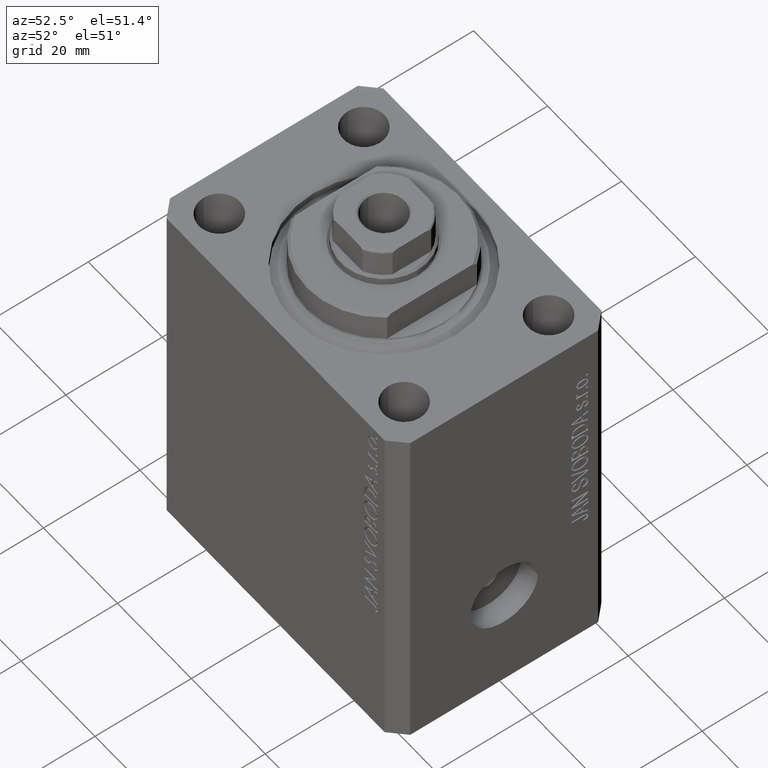
[diagram: clean part render]
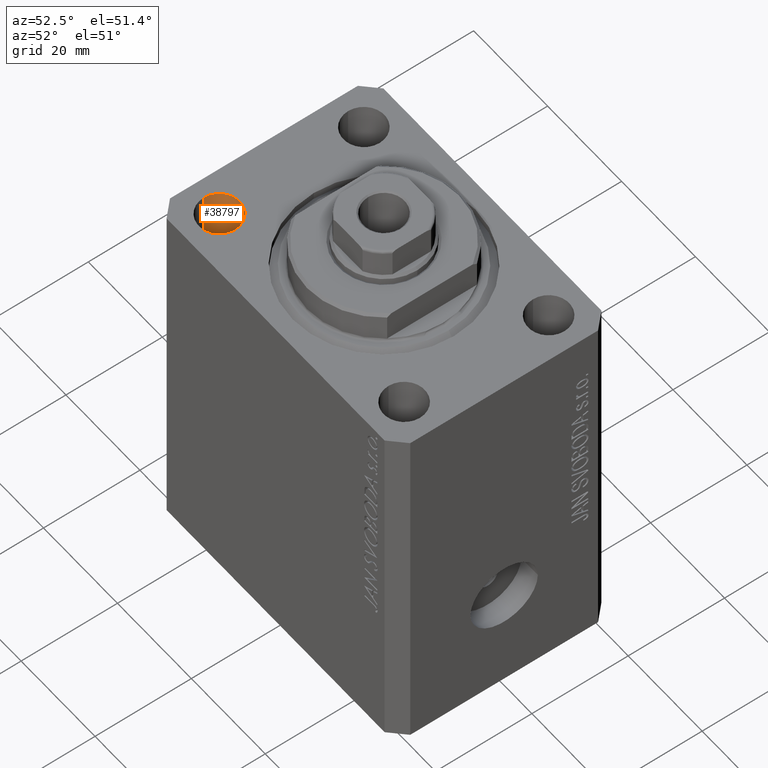
[diagram: same view with one face highlighted and labeled with its STEP entity id]
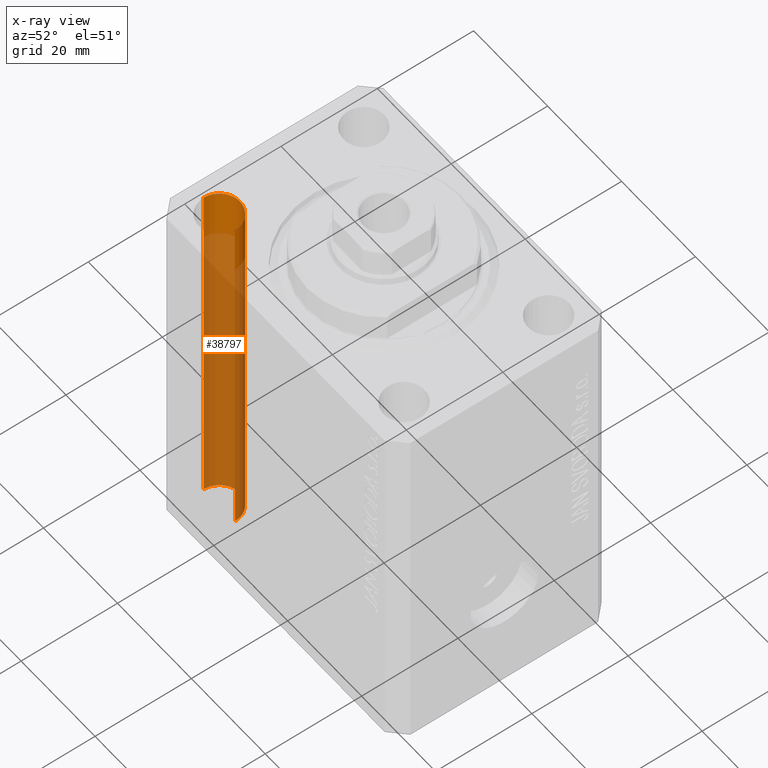
[diagram: x-ray of the same camera — body ghosted, the highlighted face saturated]
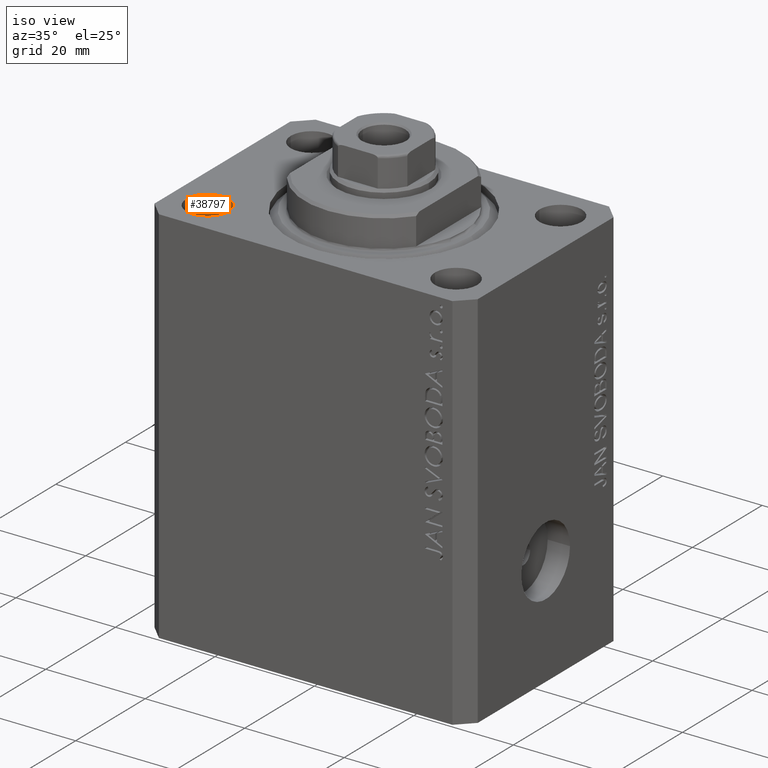
[diagram: same view with one face highlighted and labeled with its STEP entity id]
A machine part, auxiliary view. The second image highlights one B-rep face of the part: STEP entity #38797.
The next image is the same camera in x-ray: the body ghosted, the highlighted face saturated — about 85% of this face is hidden behind the body in this view.
A second angle (iso view) of the same face is appended — the face is thin or edge-on in the first view.
In plain terms, the highlighted cylindrical surface (edge-blend (fillet) strip) has radius 4.25 mm, axis along (0, 0, 1).
Its self-contained STEP definition (entity closure, byte-faithful):
#1017 = DIRECTION ( 'NONE',  ( 1.000000000000000000, 0.000000000000000000, 0.000000000000000000 ) ) ;
#1079 = CARTESIAN_POINT ( 'NONE',  ( -20.74999999995962341, -15.00000000000000355, 0.000000000000000000 ) ) ;
#1107 = EDGE_CURVE ( 'NONE', #18141, #38706, #5605, .T. ) ;
#1742 = DIRECTION ( 'NONE',  ( -0.000000000000000000, -0.000000000000000000, -1.000000000000000000 ) ) ;
#2126 = CARTESIAN_POINT ( 'NONE',  ( -20.74999999995962341, -15.00000000000000355, -77.00000000000000000 ) ) ;
#3616 = EDGE_LOOP ( 'NONE', ( #4606, #17479, #17278, #15531 ) ) ;
#4606 = ORIENTED_EDGE ( 'NONE', *, *, #6824, .F. ) ;
#5605 = LINE ( 'NONE', #29345, #39048 ) ;
#5764 = LINE ( 'NONE', #25666, #11747 ) ;
#5809 = EDGE_CURVE ( 'NONE', #22949, #18141, #9549, .T. ) ;
#6824 = EDGE_CURVE ( 'NONE', #22949, #24471, #5764, .T. ) ;
#7804 = DIRECTION ( 'NONE',  ( 0.000000000000000000, 0.000000000000000000, 1.000000000000000000 ) ) ;
#9212 = DIRECTION ( 'NONE',  ( -0.000000000000000000, -0.000000000000000000, 1.000000000000000000 ) ) ;
#9549 = CIRCLE ( 'NONE', #13172, 4.250000000040370374 ) ;
#11445 = EDGE_CURVE ( 'NONE', #38706, #24471, #37723, .T. ) ;
#11747 = VECTOR ( 'NONE', #39450, 1000.000000000000000 ) ;
#13172 = AXIS2_PLACEMENT_3D ( 'NONE', #32699, #1742, #15542 ) ;
#13486 = AXIS2_PLACEMENT_3D ( 'NONE', #18721, #29779, #15552 ) ;
#15531 = ORIENTED_EDGE ( 'NONE', *, *, #11445, .T. ) ;
#15542 = DIRECTION ( 'NONE',  ( 1.000000000000000000, 0.000000000000000000, 0.000000000000000000 ) ) ;
#15552 = DIRECTION ( 'NONE',  ( 1.000000000000000000, 0.000000000000000000, 0.000000000000000000 ) ) ;
#17278 = ORIENTED_EDGE ( 'NONE', *, *, #1107, .T. ) ;
#17479 = ORIENTED_EDGE ( 'NONE', *, *, #5809, .T. ) ;
#18141 = VERTEX_POINT ( 'NONE', #2126 ) ;
#18721 = CARTESIAN_POINT ( 'NONE',  ( -24.99999999999999289, -15.00000000000000355, -89.02081528028548973 ) ) ;
#22949 = VERTEX_POINT ( 'NONE', #24797 ) ;
#24471 = VERTEX_POINT ( 'NONE', #25229 ) ;
#24797 = CARTESIAN_POINT ( 'NONE',  ( -29.25000000004036593, -15.00000000000000355, -77.00000000000000000 ) ) ;
#25229 = CARTESIAN_POINT ( 'NONE',  ( -29.25000000004036593, -15.00000000000000355, 0.000000000000000000 ) ) ;
#25666 = CARTESIAN_POINT ( 'NONE',  ( -29.25000000004036593, -15.00000000000000355, -89.02081528028548973 ) ) ;
#25944 = CYLINDRICAL_SURFACE ( 'NONE', #13486, 4.250000000040370374 ) ;
#26396 = FACE_OUTER_BOUND ( 'NONE', #3616, .T. ) ;
#29345 = CARTESIAN_POINT ( 'NONE',  ( -20.74999999995962341, -15.00000000000000355, -89.02081528028548973 ) ) ;
#29779 = DIRECTION ( 'NONE',  ( -0.000000000000000000, -0.000000000000000000, 1.000000000000000000 ) ) ;
#32699 = CARTESIAN_POINT ( 'NONE',  ( -24.99999999999999289, -15.00000000000000355, -77.00000000000000000 ) ) ;
#34708 = CARTESIAN_POINT ( 'NONE',  ( -24.99999999999999289, -15.00000000000000355, 0.000000000000000000 ) ) ;
#37723 = CIRCLE ( 'NONE', #43504, 4.250000000040370374 ) ;
#38706 = VERTEX_POINT ( 'NONE', #1079 ) ;
#38797 = ADVANCED_FACE ( 'NONE', ( #26396 ), #25944, .F. ) ;
#39048 = VECTOR ( 'NONE', #9212, 1000.000000000000000 ) ;
#39450 = DIRECTION ( 'NONE',  ( -0.000000000000000000, -0.000000000000000000, 1.000000000000000000 ) ) ;
#43504 = AXIS2_PLACEMENT_3D ( 'NONE', #34708, #7804, #1017 ) ;